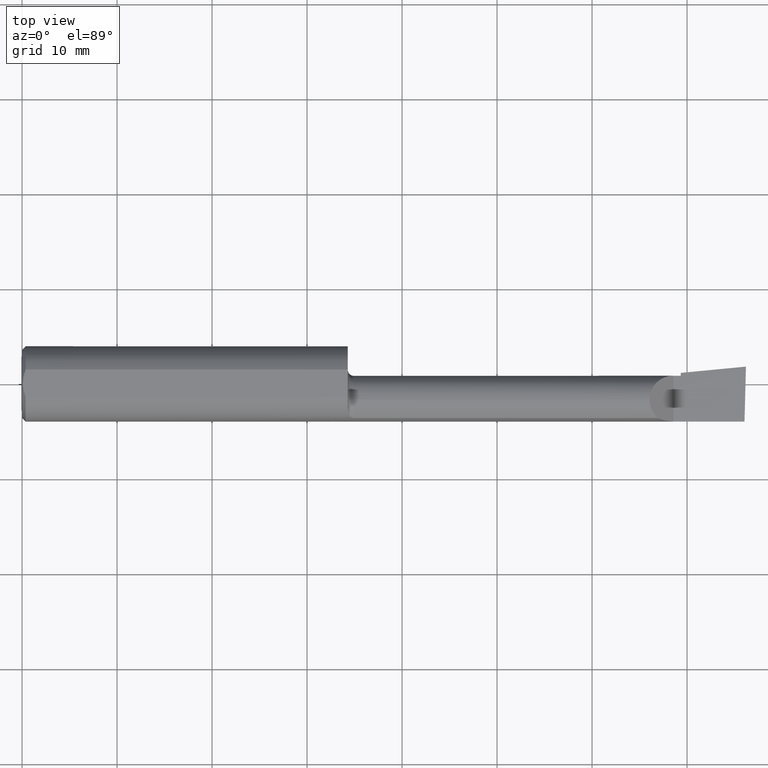
[diagram: clean part render]
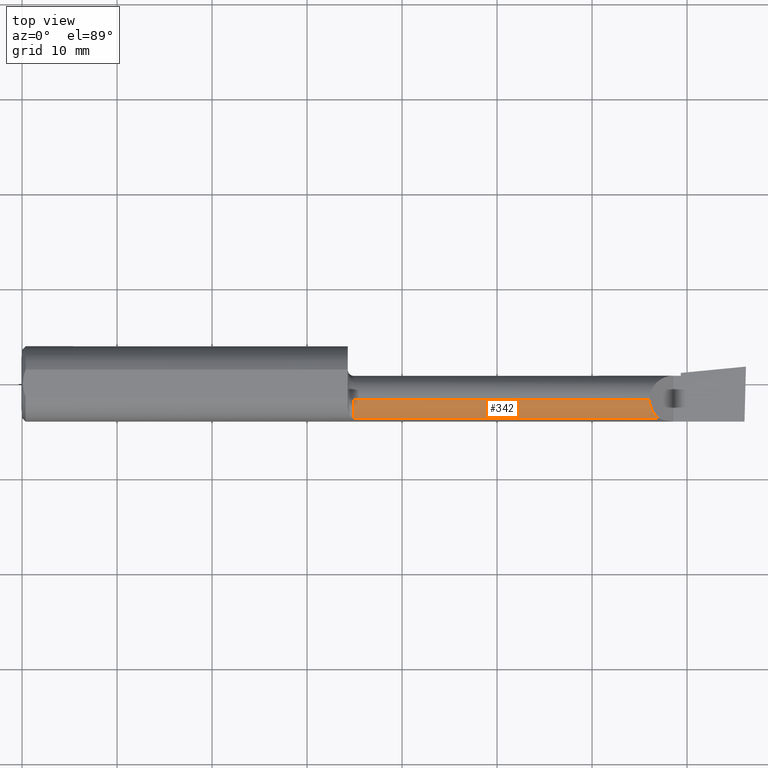
[diagram: same view with one face highlighted and labeled with its STEP entity id]
A machine part, top view. The second image highlights one B-rep face of the part: STEP entity #342.
In plain terms, the highlighted cylindrical surface (edge-blend (fillet) strip) has radius 2.5375 mm, axis along (-1, -0, -0).
Its self-contained STEP definition (entity closure, byte-faithful):
#3 = VECTOR ( 'NONE', #499, 39.37007874015748143 ) ;
#5 = AXIS2_PLACEMENT_3D ( 'NONE', #599, #686, #597 ) ;
#39 = VECTOR ( 'NONE', #202, 39.37007874015748143 ) ;
#46 = LINE ( 'NONE', #332, #3 ) ;
#61 = CYLINDRICAL_SURFACE ( 'NONE', #5, 0.09989999999999998881 ) ;
#88 = CARTESIAN_POINT ( 'NONE',  ( 2.635154559332284041, -0.1419939393939393113, 0.06484544066771599780 ) ) ;
#122 = VERTEX_POINT ( 'NONE', #293 ) ;
#141 = CARTESIAN_POINT ( 'NONE',  ( 1.375000000000000000, -0.06599999999999998923, 0.0000000000000000000 ) ) ;
#148 = CARTESIAN_POINT ( 'NONE',  ( 2.052500000000000213, -0.1419939393939393391, 0.06484544066771595616 ) ) ;
#202 = DIRECTION ( 'NONE',  ( 1.000000000000000000, 0.0000000000000000000, 0.0000000000000000000 ) ) ;
#207 = CARTESIAN_POINT ( 'NONE',  ( 2.600099999999999412, -0.09571819601686555601, 0.09990000000000000269 ) ) ;
#293 = CARTESIAN_POINT ( 'NONE',  ( 1.375000000000000000, -0.1419939393939392003, 0.06484544066771598392 ) ) ;
#313 = VERTEX_POINT ( 'NONE', #551 ) ;
#319 = CARTESIAN_POINT ( 'NONE',  ( 2.600099999999999412, -0.06599999999999998923, 0.09989999999999998881 ) ) ;
#332 = CARTESIAN_POINT ( 'NONE',  ( 0.0000000000000000000, -0.06599999999999998923, 0.09989999999999998881 ) ) ;
#342 = ADVANCED_FACE ( 'NONE', ( #493 ), #61, .T. ) ;
#351 = ORIENTED_EDGE ( 'NONE', *, *, #707, .F. ) ;
#356 = EDGE_CURVE ( 'NONE', #530, #487, #46, .T. ) ;
#358 = CIRCLE ( 'NONE', #458, 0.09989999999999990554 ) ;
#458 = AXIS2_PLACEMENT_3D ( 'NONE', #141, #539, #646 ) ;
#485 = EDGE_CURVE ( 'NONE', #122, #313, #609, .T. ) ;
#487 = VERTEX_POINT ( 'NONE', #527 ) ;
#493 = FACE_OUTER_BOUND ( 'NONE', #566, .T. ) ;
#499 = DIRECTION ( 'NONE',  ( -1.000000000000000000, -0.0000000000000000000, -0.0000000000000000000 ) ) ;
#500 = EDGE_CURVE ( 'NONE', #313, #530, #577, .T. ) ;
#527 = CARTESIAN_POINT ( 'NONE',  ( 1.375000000000000000, -0.06599999999999998923, 0.09989999999999990554 ) ) ;
#530 = VERTEX_POINT ( 'NONE', #319 ) ;
#538 = ORIENTED_EDGE ( 'NONE', *, *, #500, .T. ) ;
#539 = DIRECTION ( 'NONE',  ( -1.000000000000000000, -0.0000000000000000000, -0.0000000000000000000 ) ) ;
#546 = ORIENTED_EDGE ( 'NONE', *, *, #356, .T. ) ;
#551 = CARTESIAN_POINT ( 'NONE',  ( 2.635154559332284041, -0.1419939393939393113, 0.06484544066771599780 ) ) ;
#566 = EDGE_LOOP ( 'NONE', ( #538, #546, #351, #641 ) ) ;
#577 =( BOUNDED_CURVE ( )  B_SPLINE_CURVE ( 3, ( #88, #689, #207, #598 ),
 .UNSPECIFIED., .F., .T. ) 
 B_SPLINE_CURVE_WITH_KNOTS ( ( 4, 4 ),
 ( 5.418794317430680962, 6.283185307179586232 ),
 .UNSPECIFIED. ) 
 CURVE ( )  GEOMETRIC_REPRESENTATION_ITEM ( )  RATIONAL_B_SPLINE_CURVE ( ( 1.000000000000000000, 0.9386988813357772798, 0.9386988813357772798, 1.000000000000000000 ) ) 
 REPRESENTATION_ITEM ( '' )  );
#597 = DIRECTION ( 'NONE',  ( 0.0000000000000000000, 0.0000000000000000000, 1.000000000000000000 ) ) ;
#598 = CARTESIAN_POINT ( 'NONE',  ( 2.600099999999999412, -0.06599999999999998923, 0.09989999999999998881 ) ) ;
#599 = CARTESIAN_POINT ( 'NONE',  ( 0.0000000000000000000, -0.06599999999999998923, 0.0000000000000000000 ) ) ;
#609 = LINE ( 'NONE', #148, #39 ) ;
#641 = ORIENTED_EDGE ( 'NONE', *, *, #485, .T. ) ;
#646 = DIRECTION ( 'NONE',  ( 0.0000000000000000000, 0.0000000000000000000, 1.000000000000000000 ) ) ;
#686 = DIRECTION ( 'NONE',  ( -1.000000000000000000, -0.0000000000000000000, -0.0000000000000000000 ) ) ;
#689 = CARTESIAN_POINT ( 'NONE',  ( 2.612547924827750112, -0.1227037540429563867, 0.08745207517224935778 ) ) ;
#707 = EDGE_CURVE ( 'NONE', #122, #487, #358, .T. ) ;